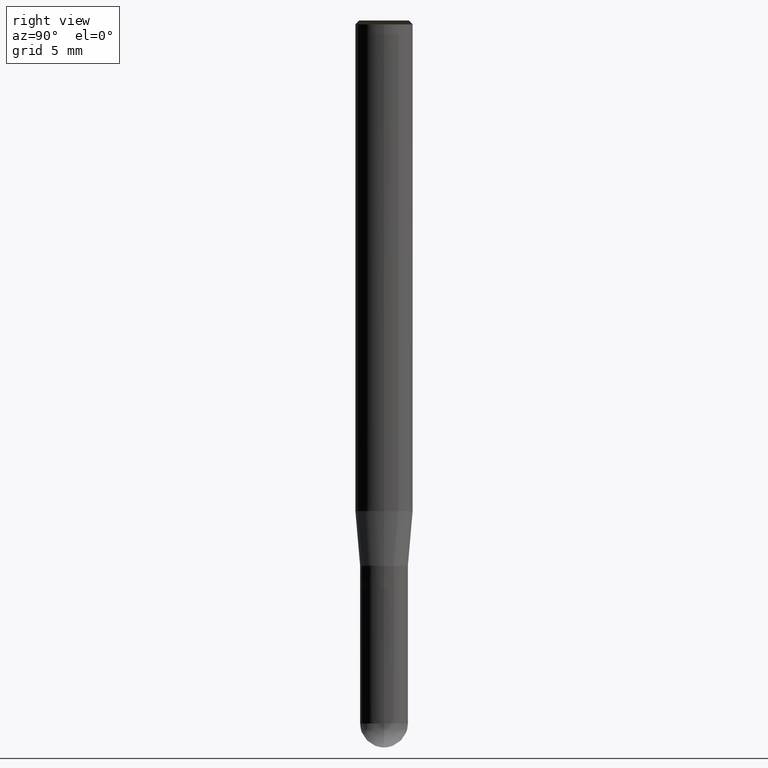
[diagram: clean part render]
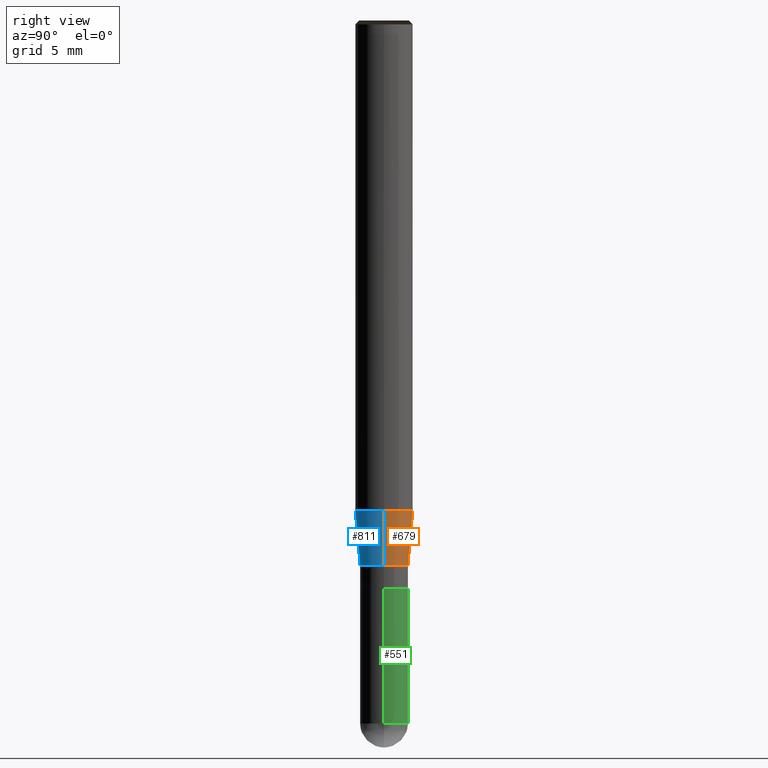
[diagram: same view with three faces highlighted in distinct colors, each labeled with its STEP entity id]
A machine part, right view with three faces highlighted in distinct colors.
Their STEP definitions:

[orange] entity #679 — the highlighted face is a freeform B-spline surface patch.
#470=CARTESIAN_POINT('',(1.25,0.0,-3.0));
#471=CARTESIAN_POINT('',(1.25,1.25,-3.0));
#472=CARTESIAN_POINT('',(0.0,1.25,-3.0));
#473=CARTESIAN_POINT('',(-1.25,1.25,-3.0));
#474=CARTESIAN_POINT('',(-1.25,0.0,-3.0));
#475=CARTESIAN_POINT('',(1.5,0.0,-0.14248692431));
#476=CARTESIAN_POINT('',(1.5,1.5,-0.14248692431));
#477=CARTESIAN_POINT('',(0.0,1.5,-0.14248692431));
#478=CARTESIAN_POINT('',(-1.5,1.5,-0.14248692431));
#479=CARTESIAN_POINT('',(-1.5,0.0,-0.14248692431));
#660=(
BOUNDED_SURFACE()
B_SPLINE_SURFACE(1,2,(
(#470,#471,#472,#473,#474),
(#475,#476,#477,#478,#479)
), .UNSPECIFIED.,.F.,.F.,.F.)
B_SPLINE_SURFACE_WITH_KNOTS((2,2),(3,2,3),(
0.0,1.0),(
0.0,0.5,1.0), .UNSPECIFIED.)
GEOMETRIC_REPRESENTATION_ITEM()
RATIONAL_B_SPLINE_SURFACE(((1.0,0.707106781187,1.0,0.707106781187,1.0),
(1.0,0.707106781187,1.0,0.707106781187,1.0)
))
REPRESENTATION_ITEM('')
SURFACE()
);
#661=(
BOUNDED_CURVE()
B_SPLINE_CURVE(2,(#474,#473,#472,#471,#470),.UNSPECIFIED.,.F.,.F.)
B_SPLINE_CURVE_WITH_KNOTS((3,2,3),
(0.0,0.5,1.0),.UNSPECIFIED.)
CURVE()
GEOMETRIC_REPRESENTATION_ITEM()
RATIONAL_B_SPLINE_CURVE((1.0,0.707106781187,1.0,0.707106781187,1.0))
REPRESENTATION_ITEM('')
);
#662=(
BOUNDED_CURVE()
B_SPLINE_CURVE(1,(#470,#475),.UNSPECIFIED.,.F.,.F.)
B_SPLINE_CURVE_WITH_KNOTS((2,2),
(0.0,1.0),.UNSPECIFIED.)
CURVE()
GEOMETRIC_REPRESENTATION_ITEM()
RATIONAL_B_SPLINE_CURVE((1.0,1.0))
REPRESENTATION_ITEM('')
);
#663=(
BOUNDED_CURVE()
B_SPLINE_CURVE(2,(#475,#476,#477,#478,#479),.UNSPECIFIED.,.F.,.F.)
B_SPLINE_CURVE_WITH_KNOTS((3,2,3),
(0.0,0.5,1.0),.UNSPECIFIED.)
CURVE()
GEOMETRIC_REPRESENTATION_ITEM()
RATIONAL_B_SPLINE_CURVE((1.0,0.707106781187,1.0,0.707106781187,1.0))
REPRESENTATION_ITEM('')
);
#664=(
BOUNDED_CURVE()
B_SPLINE_CURVE(1,(#479,#474),.UNSPECIFIED.,.F.,.F.)
B_SPLINE_CURVE_WITH_KNOTS((2,2),
(0.0,1.0),.UNSPECIFIED.)
CURVE()
GEOMETRIC_REPRESENTATION_ITEM()
RATIONAL_B_SPLINE_CURVE((1.0,1.0))
REPRESENTATION_ITEM('')
);
#665=VERTEX_POINT('',#470);
#666=VERTEX_POINT('',#474);
#667=VERTEX_POINT('',#475);
#668=VERTEX_POINT('',#479);
#669=EDGE_CURVE('',#666,#665,#661,.T.);
#670=EDGE_CURVE('',#665,#667,#662,.T.);
#671=EDGE_CURVE('',#667,#668,#663,.T.);
#672=EDGE_CURVE('',#668,#666,#664,.T.);
#673=ORIENTED_EDGE('',*,*,#669,.T.);
#674=ORIENTED_EDGE('',*,*,#670,.T.);
#675=ORIENTED_EDGE('',*,*,#671,.T.);
#676=ORIENTED_EDGE('',*,*,#672,.T.);
#677=EDGE_LOOP('',(#673,#674,#675,#676));
#678=FACE_OUTER_BOUND('',#677,.T.);
#679=ADVANCED_FACE('',(#678),#660,.T.);

[blue] entity #811 — the highlighted face is a freeform B-spline surface patch.
#470=CARTESIAN_POINT('',(1.25,0.0,-3.0));
#474=CARTESIAN_POINT('',(-1.25,0.0,-3.0));
#475=CARTESIAN_POINT('',(1.5,0.0,-0.14248692431));
#479=CARTESIAN_POINT('',(-1.5,0.0,-0.14248692431));
#496=CARTESIAN_POINT('',(-1.25,-1.25,-3.0));
#497=CARTESIAN_POINT('',(0.0,-1.25,-3.0));
#498=CARTESIAN_POINT('',(1.25,-1.25,-3.0));
#499=CARTESIAN_POINT('',(-1.5,-1.5,-0.14248692431));
#500=CARTESIAN_POINT('',(0.0,-1.5,-0.14248692431));
#501=CARTESIAN_POINT('',(1.5,-1.5,-0.14248692431));
#792=(
BOUNDED_SURFACE()
B_SPLINE_SURFACE(1,2,(
(#474,#496,#497,#498,#470),
(#479,#499,#500,#501,#475)
), .UNSPECIFIED.,.F.,.F.,.F.)
B_SPLINE_SURFACE_WITH_KNOTS((2,2),(3,2,3),(
0.0,1.0),(
0.0,0.5,1.0), .UNSPECIFIED.)
GEOMETRIC_REPRESENTATION_ITEM()
RATIONAL_B_SPLINE_SURFACE(((1.0,0.707106781187,1.0,0.707106781187,1.0),
(1.0,0.707106781187,1.0,0.707106781187,1.0)
))
REPRESENTATION_ITEM('')
SURFACE()
);
#793=(
BOUNDED_CURVE()
B_SPLINE_CURVE(2,(#470,#498,#497,#496,#474),.UNSPECIFIED.,.F.,.F.)
B_SPLINE_CURVE_WITH_KNOTS((3,2,3),
(0.0,0.5,1.0),.UNSPECIFIED.)
CURVE()
GEOMETRIC_REPRESENTATION_ITEM()
RATIONAL_B_SPLINE_CURVE((1.0,0.707106781187,1.0,0.707106781187,1.0))
REPRESENTATION_ITEM('')
);
#794=(
BOUNDED_CURVE()
B_SPLINE_CURVE(1,(#474,#479),.UNSPECIFIED.,.F.,.F.)
B_SPLINE_CURVE_WITH_KNOTS((2,2),
(0.0,1.0),.UNSPECIFIED.)
CURVE()
GEOMETRIC_REPRESENTATION_ITEM()
RATIONAL_B_SPLINE_CURVE((1.0,1.0))
REPRESENTATION_ITEM('')
);
#795=(
BOUNDED_CURVE()
B_SPLINE_CURVE(2,(#479,#499,#500,#501,#475),.UNSPECIFIED.,.F.,.F.)
B_SPLINE_CURVE_WITH_KNOTS((3,2,3),
(0.0,0.5,1.0),.UNSPECIFIED.)
CURVE()
GEOMETRIC_REPRESENTATION_ITEM()
RATIONAL_B_SPLINE_CURVE((1.0,0.707106781187,1.0,0.707106781187,1.0))
REPRESENTATION_ITEM('')
);
#796=(
BOUNDED_CURVE()
B_SPLINE_CURVE(1,(#475,#470),.UNSPECIFIED.,.F.,.F.)
B_SPLINE_CURVE_WITH_KNOTS((2,2),
(0.0,1.0),.UNSPECIFIED.)
CURVE()
GEOMETRIC_REPRESENTATION_ITEM()
RATIONAL_B_SPLINE_CURVE((1.0,1.0))
REPRESENTATION_ITEM('')
);
#797=VERTEX_POINT('',#470);
#798=VERTEX_POINT('',#474);
#799=VERTEX_POINT('',#475);
#800=VERTEX_POINT('',#479);
#801=EDGE_CURVE('',#797,#798,#793,.T.);
#802=EDGE_CURVE('',#798,#800,#794,.T.);
#803=EDGE_CURVE('',#800,#799,#795,.T.);
#804=EDGE_CURVE('',#799,#797,#796,.T.);
#805=ORIENTED_EDGE('',*,*,#801,.T.);
#806=ORIENTED_EDGE('',*,*,#802,.T.);
#807=ORIENTED_EDGE('',*,*,#803,.T.);
#808=ORIENTED_EDGE('',*,*,#804,.T.);
#809=EDGE_LOOP('',(#805,#806,#807,#808));
#810=FACE_OUTER_BOUND('',#809,.T.);
#811=ADVANCED_FACE('',(#810),#792,.T.);

[green] entity #551 — the highlighted face is a freeform B-spline surface patch.
#450=CARTESIAN_POINT('',(1.25,0.0,-11.25));
#451=CARTESIAN_POINT('',(1.25,1.25,-11.25));
#452=CARTESIAN_POINT('',(0.0,1.25,-11.25));
#453=CARTESIAN_POINT('',(-1.25,1.25,-11.25));
#454=CARTESIAN_POINT('',(-1.25,0.0,-11.25));
#455=CARTESIAN_POINT('',(1.25,0.0,-4.1875));
#456=CARTESIAN_POINT('',(1.25,1.25,-4.1875));
#457=CARTESIAN_POINT('',(0.0,1.25,-4.1875));
#458=CARTESIAN_POINT('',(-1.25,1.25,-4.1875));
#459=CARTESIAN_POINT('',(-1.25,0.0,-4.1875));
#532=(
BOUNDED_SURFACE()
B_SPLINE_SURFACE(1,2,(
(#450,#451,#452,#453,#454),
(#455,#456,#457,#458,#459)
), .UNSPECIFIED.,.F.,.F.,.F.)
B_SPLINE_SURFACE_WITH_KNOTS((2,2),(3,2,3),(
0.0,1.0),(
0.0,0.5,1.0), .UNSPECIFIED.)
GEOMETRIC_REPRESENTATION_ITEM()
RATIONAL_B_SPLINE_SURFACE(((1.0,0.707106781187,1.0,0.707106781187,1.0),
(1.0,0.707106781187,1.0,0.707106781187,1.0)
))
REPRESENTATION_ITEM('')
SURFACE()
);
#533=(
BOUNDED_CURVE()
B_SPLINE_CURVE(2,(#454,#453,#452,#451,#450),.UNSPECIFIED.,.F.,.F.)
B_SPLINE_CURVE_WITH_KNOTS((3,2,3),
(0.0,0.5,1.0),.UNSPECIFIED.)
CURVE()
GEOMETRIC_REPRESENTATION_ITEM()
RATIONAL_B_SPLINE_CURVE((1.0,0.707106781187,1.0,0.707106781187,1.0))
REPRESENTATION_ITEM('')
);
#534=(
BOUNDED_CURVE()
B_SPLINE_CURVE(1,(#450,#455),.UNSPECIFIED.,.F.,.F.)
B_SPLINE_CURVE_WITH_KNOTS((2,2),
(0.0,1.0),.UNSPECIFIED.)
CURVE()
GEOMETRIC_REPRESENTATION_ITEM()
RATIONAL_B_SPLINE_CURVE((1.0,1.0))
REPRESENTATION_ITEM('')
);
#535=(
BOUNDED_CURVE()
B_SPLINE_CURVE(2,(#455,#456,#457,#458,#459),.UNSPECIFIED.,.F.,.F.)
B_SPLINE_CURVE_WITH_KNOTS((3,2,3),
(0.0,0.5,1.0),.UNSPECIFIED.)
CURVE()
GEOMETRIC_REPRESENTATION_ITEM()
RATIONAL_B_SPLINE_CURVE((1.0,0.707106781187,1.0,0.707106781187,1.0))
REPRESENTATION_ITEM('')
);
#536=(
BOUNDED_CURVE()
B_SPLINE_CURVE(1,(#459,#454),.UNSPECIFIED.,.F.,.F.)
B_SPLINE_CURVE_WITH_KNOTS((2,2),
(0.0,1.0),.UNSPECIFIED.)
CURVE()
GEOMETRIC_REPRESENTATION_ITEM()
RATIONAL_B_SPLINE_CURVE((1.0,1.0))
REPRESENTATION_ITEM('')
);
#537=VERTEX_POINT('',#450);
#538=VERTEX_POINT('',#454);
#539=VERTEX_POINT('',#455);
#540=VERTEX_POINT('',#459);
#541=EDGE_CURVE('',#538,#537,#533,.T.);
#542=EDGE_CURVE('',#537,#539,#534,.T.);
#543=EDGE_CURVE('',#539,#540,#535,.T.);
#544=EDGE_CURVE('',#540,#538,#536,.T.);
#545=ORIENTED_EDGE('',*,*,#541,.T.);
#546=ORIENTED_EDGE('',*,*,#542,.T.);
#547=ORIENTED_EDGE('',*,*,#543,.T.);
#548=ORIENTED_EDGE('',*,*,#544,.T.);
#549=EDGE_LOOP('',(#545,#546,#547,#548));
#550=FACE_OUTER_BOUND('',#549,.T.);
#551=ADVANCED_FACE('',(#550),#532,.T.);